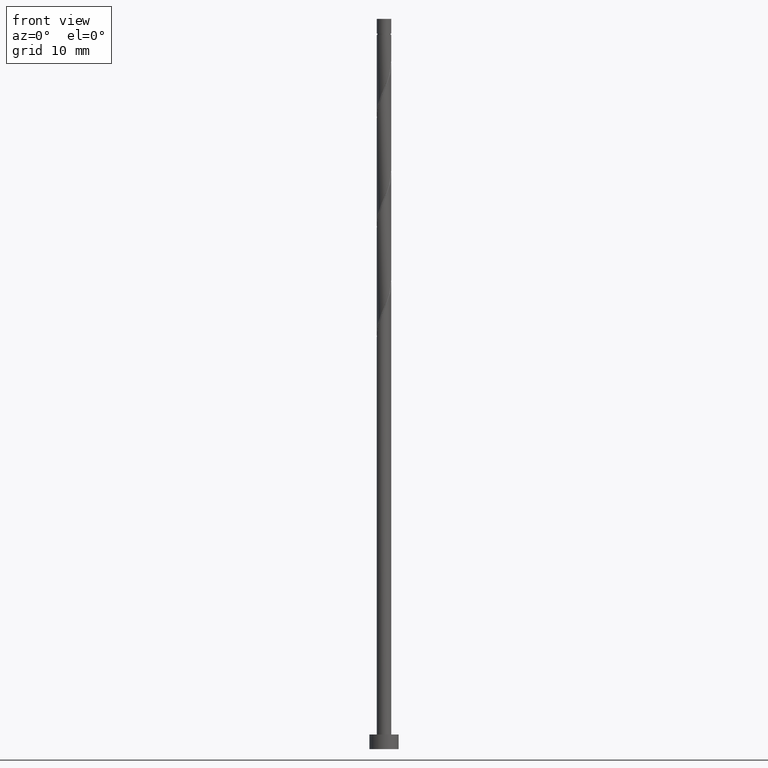
[diagram: clean part render]
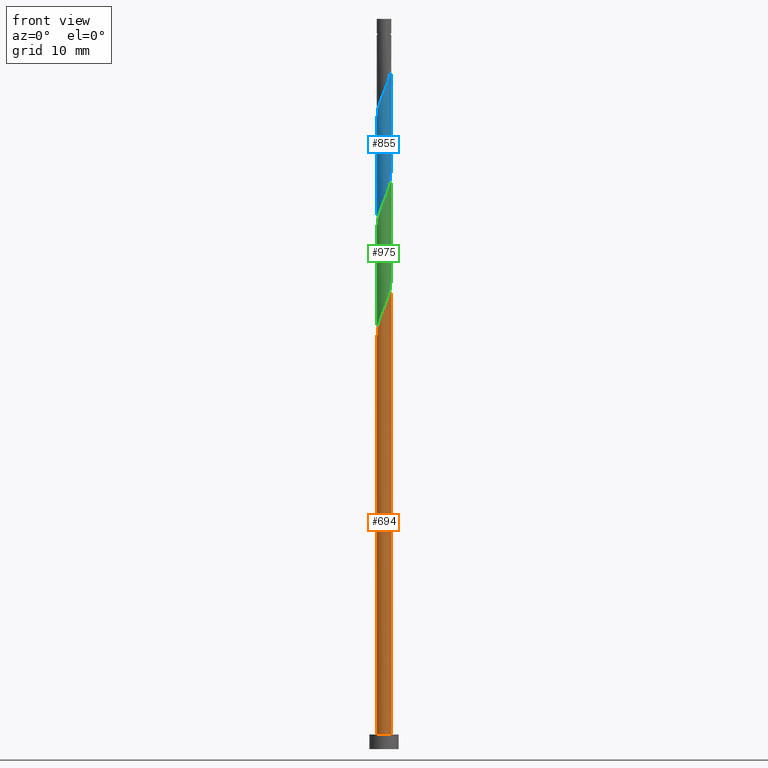
[diagram: same view with three faces highlighted in distinct colors, each labeled with its STEP entity id]
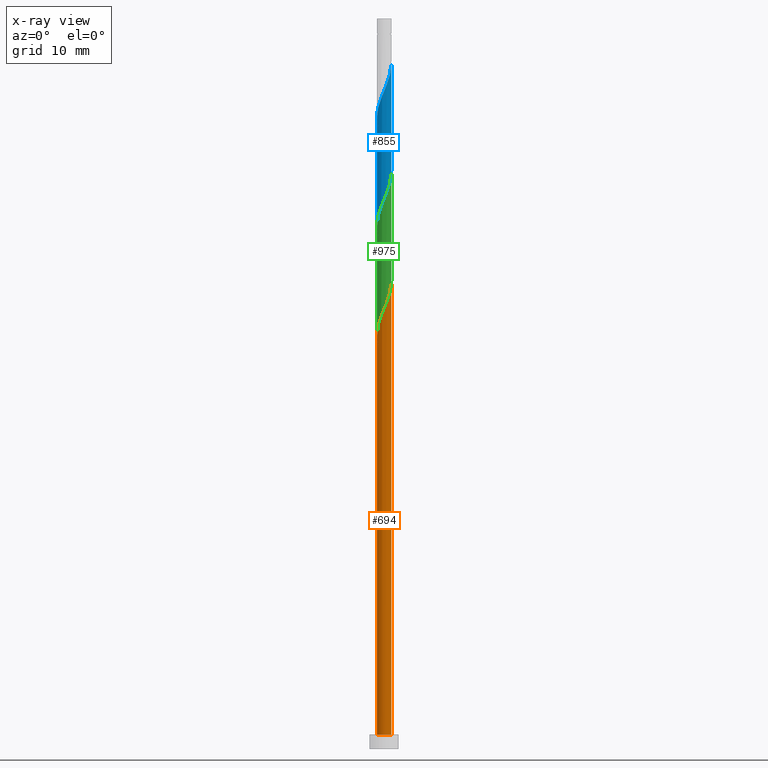
[diagram: x-ray of the same camera — body ghosted, the three highlighted faces saturated]
A machine part, front view with three faces highlighted in distinct colors.
The next image is the same camera in x-ray (body ghosted, the three faces saturated) — at least one of them is partly hidden behind the body in this view.
Their STEP definitions:

[orange] entity #694 — the highlighted cylindrical surface (edge-blend (fillet) strip) has radius 1 mm, axis along (-0, -0, -1).
#9 = CARTESIAN_POINT ( 'NONE',  ( -1.000000000000000000, 0.000000000000000000, 2.000000000000000000 ) ) ;
#14 = CARTESIAN_POINT ( 'NONE',  ( 1.000000000000000444, -0.03726283816066764537, 63.72138669025336100 ) ) ;
#23 = CARTESIAN_POINT ( 'NONE',  ( -0.9999999999999997780, -8.453207281310098825E-15, 56.31035135352637155 ) ) ;
#41 = CARTESIAN_POINT ( 'NONE',  ( 0.000000000000000000, 0.000000000000000000, 2.000000000000000000 ) ) ;
#77 =( BOUNDED_CURVE ( )  B_SPLINE_CURVE ( 2, ( #1274, #144, #1162, #1397, #380, #766, #522, #197, #1106, #660, #556, #1237, #402, #860, #745, #246, #121, #133, #1059, #14, #838 ),
 .UNSPECIFIED., .F., .T. ) 
 B_SPLINE_CURVE_WITH_KNOTS ( ( 3, 2, 2, 2, 2, 2, 2, 2, 2, 2, 3 ),
 ( 0.05852626155789682205, 0.06944444444444441977, 0.08333333333333337034, 0.09722222222222220989, 0.1111111111111111605, 0.1250000000000000000, 0.1388888888888888395, 0.1527777777777777901, 0.1666666666666666297, 0.1805555555555555802, 0.1835262615578969192 ),
 .UNSPECIFIED. ) 
 CURVE ( )  GEOMETRIC_REPRESENTATION_ITEM ( )  RATIONAL_B_SPLINE_CURVE ( ( 0.9475153373969229520, 0.9410068908218436334, 0.9523809523809509958, 0.9379121457259110839, 0.9523809523809509958, 0.9379121457259110839, 0.9523809523809509958, 0.9379121457259110839, 0.9523809523809509958, 0.9379121457259110839, 0.9523809523809509958, 0.9379121457259110839, 0.9523809523809509958, 0.9379121457259110839, 0.9523809523809509958, 0.9379121457259110839, 0.9523809523809509958, 0.9379121457259110839, 0.9523809523809509958, 0.9492862072850182242, 0.9475153373969227300 ) ) 
 REPRESENTATION_ITEM ( '' )  );
#104 = ORIENTED_EDGE ( 'NONE', *, *, #1175, .T. ) ;
#111 = ORIENTED_EDGE ( 'NONE', *, *, #781, .F. ) ;
#121 = CARTESIAN_POINT ( 'NONE',  ( 0.9116327376541116800, -0.4110057805399693898, 62.79999999999999716 ) ) ;
#132 = FACE_OUTER_BOUND ( 'NONE', #1227, .T. ) ;
#133 = CARTESIAN_POINT ( 'NONE',  ( 0.9841041459904503741, -0.2502603323944278535, 63.21666666666666856 ) ) ;
#144 = CARTESIAN_POINT ( 'NONE',  ( -0.9999999999999988898, -0.1381563937346808602, 56.64019839831190950 ) ) ;
#168 = DIRECTION ( 'NONE',  ( 0.000000000000000000, 0.000000000000000000, 1.000000000000000000 ) ) ;
#197 = CARTESIAN_POINT ( 'NONE',  ( -0.4173462071991567157, -0.9256961420802413132, 59.05000000000000426 ) ) ;
#246 = CARTESIAN_POINT ( 'NONE',  ( 0.8391613293177730970, -0.5717512286855108705, 62.38333333333333997 ) ) ;
#255 = DIRECTION ( 'NONE',  ( -0.000000000000000000, -0.000000000000000000, -1.000000000000000000 ) ) ;
#275 = VERTEX_POINT ( 'NONE', #683 ) ;
#327 = CARTESIAN_POINT ( 'NONE',  ( 1.000000000000000000, 1.224646799147353207E-16, 2.000000000000000000 ) ) ;
#342 = VERTEX_POINT ( 'NONE', #327 ) ;
#378 = LINE ( 'NONE', #1168, #1212 ) ;
#380 = CARTESIAN_POINT ( 'NONE',  ( -0.8117578158769209740, -0.5839942194600308278, 57.80000000000000426 ) ) ;
#402 = CARTESIAN_POINT ( 'NONE',  ( 0.4341617696046363717, -0.9008349226211040950, 61.13333333333334707 ) ) ;
#447 = EDGE_CURVE ( 'NONE', #680, #1024, #482, .T. ) ;
#482 = LINE ( 'NONE', #948, #609 ) ;
#489 = DIRECTION ( 'NONE',  ( -1.000000000000000000, 0.000000000000000000, 0.000000000000000000 ) ) ;
#498 = EDGE_CURVE ( 'NONE', #680, #275, #77, .T. ) ;
#522 = CARTESIAN_POINT ( 'NONE',  ( -0.5630650428037469180, -0.8264125831401736288, 58.63333333333333286 ) ) ;
#556 = CARTESIAN_POINT ( 'NONE',  ( 0.09987492177719080322, -0.9949999999999999956, 60.30000000000000426 ) ) ;
#609 = VECTOR ( 'NONE', #1388, 1000.000000000000000 ) ;
#660 = CARTESIAN_POINT ( 'NONE',  ( -0.07557042402773206380, -1.012610643405466249, 59.88333333333335418 ) ) ;
#680 = VERTEX_POINT ( 'NONE', #23 ) ;
#683 = CARTESIAN_POINT ( 'NONE',  ( 1.000000000000000000, 7.866774965686214893E-17, 63.81035135352636445 ) ) ;
#694 = ADVANCED_FACE ( 'NONE', ( #132 ), #1281, .T. ) ;
#745 = CARTESIAN_POINT ( 'NONE',  ( 0.7160823004724661267, -0.6980158586665925480, 61.96666666666666856 ) ) ;
#766 = CARTESIAN_POINT ( 'NONE',  ( -0.7087838784083370092, -0.7271290242001063886, 58.21666666666666856 ) ) ;
#781 = EDGE_CURVE ( 'NONE', #275, #342, #378, .T. ) ;
#798 = AXIS2_PLACEMENT_3D ( 'NONE', #1177, #1289, #489 ) ;
#838 = CARTESIAN_POINT ( 'NONE',  ( 1.000000000000000000, 7.866774965686214893E-17, 63.81035135352636445 ) ) ;
#860 = CARTESIAN_POINT ( 'NONE',  ( 0.5930032716271590454, -0.8242804886476744475, 61.55000000000001137 ) ) ;
#948 = CARTESIAN_POINT ( 'NONE',  ( -1.000000000000000000, 0.000000000000000000, 100.0000000000000000 ) ) ;
#1024 = VERTEX_POINT ( 'NONE', #9 ) ;
#1059 = CARTESIAN_POINT ( 'NONE',  ( 0.9972268124083832896, -0.07442233948093021634, 63.63333333333334707 ) ) ;
#1062 = CIRCLE ( 'NONE', #1235, 1.000000000000000000 ) ;
#1106 = CARTESIAN_POINT ( 'NONE',  ( -0.2464583156134444175, -0.9691533927428536144, 59.46666666666667567 ) ) ;
#1162 = CARTESIAN_POINT ( 'NONE',  ( -0.9625406160859104610, -0.2711375340762611774, 56.96666666666668277 ) ) ;
#1168 = CARTESIAN_POINT ( 'NONE',  ( 1.000000000000000000, 1.224646799147353207E-16, 100.0000000000000000 ) ) ;
#1175 = EDGE_CURVE ( 'NONE', #1024, #342, #1062, .T. ) ;
#1177 = CARTESIAN_POINT ( 'NONE',  ( 0.000000000000000000, 0.000000000000000000, 100.0000000000000000 ) ) ;
#1179 = ORIENTED_EDGE ( 'NONE', *, *, #447, .T. ) ;
#1212 = VECTOR ( 'NONE', #255, 1000.000000000000000 ) ;
#1227 = EDGE_LOOP ( 'NONE', ( #111, #1306, #1179, #104 ) ) ;
#1235 = AXIS2_PLACEMENT_3D ( 'NONE', #41, #168, #1391 ) ;
#1237 = CARTESIAN_POINT ( 'NONE',  ( 0.2753202675821132539, -0.9773893565945339645, 60.71666666666666856 ) ) ;
#1274 = CARTESIAN_POINT ( 'NONE',  ( -0.9999999999999997780, -8.453207281310098825E-15, 56.31035135352637155 ) ) ;
#1281 = CYLINDRICAL_SURFACE ( 'NONE', #798, 1.000000000000000000 ) ;
#1289 = DIRECTION ( 'NONE',  ( -0.000000000000000000, -0.000000000000000000, -1.000000000000000000 ) ) ;
#1306 = ORIENTED_EDGE ( 'NONE', *, *, #498, .F. ) ;
#1388 = DIRECTION ( 'NONE',  ( -0.000000000000000000, -0.000000000000000000, -1.000000000000000000 ) ) ;
#1391 = DIRECTION ( 'NONE',  ( 1.000000000000000000, 0.000000000000000000, 0.000000000000000000 ) ) ;
#1397 = CARTESIAN_POINT ( 'NONE',  ( -0.9147317533455049388, -0.4408594147199554891, 57.38333333333333997 ) ) ;

[blue] entity #855 — the highlighted cylindrical surface (edge-blend (fillet) strip) has radius 1 mm, axis along (-0, -0, -1).
#18 = CARTESIAN_POINT ( 'NONE',  ( -1.000000000000000444, -0.03726283816067003929, 71.87861330974669727 ) ) ;
#26 = CARTESIAN_POINT ( 'NONE',  ( -0.4341617696046366492, -0.9008349226211040950, 74.46666666666665435 ) ) ;
#42 = EDGE_CURVE ( 'NONE', #323, #123, #903, .T. ) ;
#50 = CARTESIAN_POINT ( 'NONE',  ( -1.000000000000000444, -0.1381563937346758919, 86.64019839831189529 ) ) ;
#60 = CARTESIAN_POINT ( 'NONE',  ( -0.9147317533455049388, -0.4408594147199554891, 87.38333333333331154 ) ) ;
#61 = CARTESIAN_POINT ( 'NONE',  ( 1.000000000000000222, -0.03726283816066728455, 93.72138669025336810 ) ) ;
#67 = CARTESIAN_POINT ( 'NONE',  ( -0.9625406160859104610, -0.2711375340762611774, 86.96666666666666856 ) ) ;
#123 = VERTEX_POINT ( 'NONE', #1265 ) ;
#172 = FACE_OUTER_BOUND ( 'NONE', #863, .T. ) ;
#178 = CARTESIAN_POINT ( 'NONE',  ( -1.000000000000000000, -8.581936326203144864E-17, 86.31035135352635734 ) ) ;
#190 = CARTESIAN_POINT ( 'NONE',  ( 0.9116327376541116800, -0.4110057805399693898, 92.80000000000001137 ) ) ;
#230 = CARTESIAN_POINT ( 'NONE',  ( -1.000000000000000000, -8.581936326203144864E-17, 86.31035135352635734 ) ) ;
#299 = CARTESIAN_POINT ( 'NONE',  ( 0.09987492177719080322, -0.9949999999999999956, 90.29999999999999716 ) ) ;
#300 = CARTESIAN_POINT ( 'NONE',  ( 0.8391613293177730970, -0.5717512286855108705, 92.38333333333331154 ) ) ;
#323 = VERTEX_POINT ( 'NONE', #230 ) ;
#335 = CARTESIAN_POINT ( 'NONE',  ( 0.7160823004724661267, -0.6980158586665925480, 91.96666666666669698 ) ) ;
#413 = CARTESIAN_POINT ( 'NONE',  ( -0.7087838784083370092, -0.7271290242001063886, 88.21666666666666856 ) ) ;
#509 = CARTESIAN_POINT ( 'NONE',  ( 1.000000000000000222, -4.290968163101563064E-16, 79.28964864647366539 ) ) ;
#524 = CYLINDRICAL_SURFACE ( 'NONE', #701, 1.000000000000000000 ) ;
#525 = CARTESIAN_POINT ( 'NONE',  ( 0.9972268124083832896, -0.07442233948093021634, 93.63333333333335418 ) ) ;
#533 = CARTESIAN_POINT ( 'NONE',  ( 1.000000000000000000, 7.866774965686214893E-17, 93.81035135352635734 ) ) ;
#538 = CARTESIAN_POINT ( 'NONE',  ( 1.000000000000000000, 7.866774965686214893E-17, 93.81035135352635734 ) ) ;
#539 = CARTESIAN_POINT ( 'NONE',  ( -0.8117578158769209740, -0.5839942194600308278, 87.80000000000001137 ) ) ;
#580 = CARTESIAN_POINT ( 'NONE',  ( 0.4341617696046363717, -0.9008349226211040950, 91.13333333333332575 ) ) ;
#607 = CARTESIAN_POINT ( 'NONE',  ( -0.09987492177719106690, -0.9949999999999999956, 75.30000000000002558 ) ) ;
#630 = CARTESIAN_POINT ( 'NONE',  ( 0.5630650428037468069, -0.8264125831401737399, 76.96666666666666856 ) ) ;
#634 = CARTESIAN_POINT ( 'NONE',  ( 0.000000000000000000, 0.000000000000000000, 100.0000000000000000 ) ) ;
#640 = CARTESIAN_POINT ( 'NONE',  ( -0.4173462071991567157, -0.9256961420802413132, 89.04999999999999716 ) ) ;
#670 = VECTOR ( 'NONE', #1091, 1000.000000000000000 ) ;
#701 = AXIS2_PLACEMENT_3D ( 'NONE', #634, #758, #1095 ) ;
#716 = CARTESIAN_POINT ( 'NONE',  ( 1.000000000000000222, -4.290968163101563064E-16, 79.28964864647366539 ) ) ;
#719 = CARTESIAN_POINT ( 'NONE',  ( 1.000000000000000000, 1.224646799147353207E-16, 100.0000000000000000 ) ) ;
#727 = CARTESIAN_POINT ( 'NONE',  ( -0.9841041459904508182, -0.2502603323944273539, 72.38333333333333997 ) ) ;
#758 = DIRECTION ( 'NONE',  ( -0.000000000000000000, -0.000000000000000000, -1.000000000000000000 ) ) ;
#763 = ORIENTED_EDGE ( 'NONE', *, *, #1067, .F. ) ;
#783 = VERTEX_POINT ( 'NONE', #716 ) ;
#842 = CARTESIAN_POINT ( 'NONE',  ( -1.000000000000000000, -2.603187352281614199E-15, 71.78964864647365118 ) ) ;
#853 = CARTESIAN_POINT ( 'NONE',  ( -0.7160823004724664598, -0.6980158586665924370, 73.63333333333332575 ) ) ;
#855 = ADVANCED_FACE ( 'NONE', ( #172 ), #524, .T. ) ;
#858 = EDGE_CURVE ( 'NONE', #323, #1410, #1157, .T. ) ;
#859 = CARTESIAN_POINT ( 'NONE',  ( -0.2753202675821139200, -0.9773893565945336315, 74.88333333333332575 ) ) ;
#863 = EDGE_LOOP ( 'NONE', ( #1137, #1079, #1372, #763 ) ) ;
#871 = CARTESIAN_POINT ( 'NONE',  ( -0.07557042402773206380, -1.012610643405466249, 89.88333333333333997 ) ) ;
#903 = LINE ( 'NONE', #1242, #1399 ) ;
#951 = CARTESIAN_POINT ( 'NONE',  ( 0.07557042402773136991, -1.012610643405466471, 75.71666666666666856 ) ) ;
#960 = CARTESIAN_POINT ( 'NONE',  ( 0.2464583156134441955, -0.9691533927428537254, 76.13333333333332575 ) ) ;
#966 = CARTESIAN_POINT ( 'NONE',  ( -0.9116327376541120131, -0.4110057805399687791, 72.80000000000002558 ) ) ;
#974 = CARTESIAN_POINT ( 'NONE',  ( 0.4173462071991564382, -0.9256961420802414242, 76.54999999999999716 ) ) ;
#979 = CARTESIAN_POINT ( 'NONE',  ( 0.9147317533455048277, -0.4408594147199561553, 78.21666666666665435 ) ) ;
#989 = CARTESIAN_POINT ( 'NONE',  ( 0.9841041459904503741, -0.2502603323944278535, 93.21666666666666856 ) ) ;
#996 = CARTESIAN_POINT ( 'NONE',  ( 0.5930032716271590454, -0.8242804886476744475, 91.54999999999999716 ) ) ;
#1002 = CARTESIAN_POINT ( 'NONE',  ( -0.5630650428037469180, -0.8264125831401736288, 88.63333333333335418 ) ) ;
#1067 = EDGE_CURVE ( 'NONE', #783, #123, #1462, .T. ) ;
#1076 = EDGE_CURVE ( 'NONE', #1410, #783, #1180, .T. ) ;
#1079 = ORIENTED_EDGE ( 'NONE', *, *, #858, .F. ) ;
#1091 = DIRECTION ( 'NONE',  ( -0.000000000000000000, -0.000000000000000000, -1.000000000000000000 ) ) ;
#1095 = DIRECTION ( 'NONE',  ( -1.000000000000000000, 0.000000000000000000, 0.000000000000000000 ) ) ;
#1131 = DIRECTION ( 'NONE',  ( -0.000000000000000000, -0.000000000000000000, -1.000000000000000000 ) ) ;
#1137 = ORIENTED_EDGE ( 'NONE', *, *, #1076, .F. ) ;
#1157 =( BOUNDED_CURVE ( )  B_SPLINE_CURVE ( 2, ( #178, #50, #67, #60, #539, #413, #1002, #640, #1442, #871, #299, #1199, #580, #996, #335, #300, #190, #989, #525, #61, #533 ),
 .UNSPECIFIED., .F., .T. ) 
 B_SPLINE_CURVE_WITH_KNOTS ( ( 3, 2, 2, 2, 2, 2, 2, 2, 2, 2, 3 ),
 ( 0.5585262615578964196, 0.5694444444444444198, 0.5833333333333332593, 0.5972222222222222099, 0.6111111111111111605, 0.6250000000000000000, 0.6388888888888888395, 0.6527777777777777901, 0.6666666666666667407, 0.6805555555555555802, 0.6835262615578969747 ),
 .UNSPECIFIED. ) 
 CURVE ( )  GEOMETRIC_REPRESENTATION_ITEM ( )  RATIONAL_B_SPLINE_CURVE ( ( 0.9475153373969233961, 0.9410068908218433004, 0.9523809523809509958, 0.9379121457259110839, 0.9523809523809509958, 0.9379121457259110839, 0.9523809523809509958, 0.9379121457259110839, 0.9523809523809509958, 0.9379121457259110839, 0.9523809523809509958, 0.9379121457259110839, 0.9523809523809509958, 0.9379121457259110839, 0.9523809523809509958, 0.9379121457259110839, 0.9523809523809509958, 0.9379121457259110839, 0.9523809523809509958, 0.9492862072850182242, 0.9475153373969227300 ) ) 
 REPRESENTATION_ITEM ( '' )  );
#1172 = CARTESIAN_POINT ( 'NONE',  ( -0.9972268124083832896, -0.07442233948093023022, 71.96666666666668277 ) ) ;
#1180 = LINE ( 'NONE', #719, #670 ) ;
#1199 = CARTESIAN_POINT ( 'NONE',  ( 0.2753202675821132539, -0.9773893565945339645, 90.71666666666666856 ) ) ;
#1242 = CARTESIAN_POINT ( 'NONE',  ( -1.000000000000000000, 0.000000000000000000, 100.0000000000000000 ) ) ;
#1265 = CARTESIAN_POINT ( 'NONE',  ( -1.000000000000000000, -2.603187352281614199E-15, 71.78964864647365118 ) ) ;
#1275 = CARTESIAN_POINT ( 'NONE',  ( -0.8391613293177733190, -0.5717512286855107595, 73.21666666666664014 ) ) ;
#1284 = CARTESIAN_POINT ( 'NONE',  ( 1.000000000000000888, -0.1381563937346747262, 78.95980160168809903 ) ) ;
#1300 = CARTESIAN_POINT ( 'NONE',  ( -0.5930032716271594895, -0.8242804886476744475, 74.05000000000001137 ) ) ;
#1304 = CARTESIAN_POINT ( 'NONE',  ( 0.7087838784083367871, -0.7271290242001067217, 77.38333333333332575 ) ) ;
#1372 = ORIENTED_EDGE ( 'NONE', *, *, #42, .T. ) ;
#1399 = VECTOR ( 'NONE', #1131, 1000.000000000000000 ) ;
#1407 = CARTESIAN_POINT ( 'NONE',  ( 0.9625406160859105720, -0.2711375340762611219, 78.63333333333331154 ) ) ;
#1410 = VERTEX_POINT ( 'NONE', #538 ) ;
#1420 = CARTESIAN_POINT ( 'NONE',  ( 0.8117578158769208629, -0.5839942194600313830, 77.80000000000002558 ) ) ;
#1442 = CARTESIAN_POINT ( 'NONE',  ( -0.2464583156134444175, -0.9691533927428536144, 89.46666666666669698 ) ) ;
#1462 =( BOUNDED_CURVE ( )  B_SPLINE_CURVE ( 2, ( #509, #1284, #1407, #979, #1420, #1304, #630, #974, #960, #951, #607, #859, #26, #1300, #853, #1275, #966, #727, #1172, #18, #842 ),
 .UNSPECIFIED., .F., .T. ) 
 B_SPLINE_CURVE_WITH_KNOTS ( ( 3, 2, 2, 2, 2, 2, 2, 2, 2, 2, 3 ),
 ( 0.5585262615578963086, 0.5694444444444444198, 0.5833333333333333703, 0.5972222222222222099, 0.6111111111111111605, 0.6250000000000000000, 0.6388888888888888395, 0.6527777777777777901, 0.6666666666666666297, 0.6805555555555555802, 0.6835262615578967527 ),
 .UNSPECIFIED. ) 
 CURVE ( )  GEOMETRIC_REPRESENTATION_ITEM ( )  RATIONAL_B_SPLINE_CURVE ( ( 0.9475153373969255055, 0.9410068908218450767, 0.9523809523809528832, 0.9379121457259129713, 0.9523809523809528832, 0.9379121457259129713, 0.9523809523809528832, 0.9379121457259129713, 0.9523809523809528832, 0.9379121457259129713, 0.9523809523809528832, 0.9379121457259129713, 0.9523809523809528832, 0.9379121457259129713, 0.9523809523809528832, 0.9379121457259129713, 0.9523809523809528832, 0.9379121457259129713, 0.9523809523809528832, 0.9492862072850202226, 0.9475153373969248394 ) ) 
 REPRESENTATION_ITEM ( '' )  );

[green] entity #975 — the highlighted cylindrical surface (edge-blend (fillet) strip) has radius 1 mm, axis along (-0, -0, -1).
#33 = CARTESIAN_POINT ( 'NONE',  ( -0.9116327376541120131, -0.4110057805399687791, 57.80000000000000426 ) ) ;
#35 = CARTESIAN_POINT ( 'NONE',  ( 0.2753202675821132539, -0.9773893565945339645, 75.71666666666664014 ) ) ;
#39 =( BOUNDED_CURVE ( )  B_SPLINE_CURVE ( 2, ( #257, #386, #147, #1068, #492, #265, #847, #395, #273, #1190, #45, #35, #401, #161, #1400, #154, #735, #832, #620, #1163, #1077 ),
 .UNSPECIFIED., .F., .T. ) 
 B_SPLINE_CURVE_WITH_KNOTS ( ( 3, 2, 2, 2, 2, 2, 2, 2, 2, 2, 3 ),
 ( 0.3085262615578962531, 0.3194444444444444198, 0.3333333333333333703, 0.3472222222222222099, 0.3611111111111111605, 0.3750000000000000000, 0.3888888888888888395, 0.4027777777777777901, 0.4166666666666666297, 0.4305555555555555802, 0.4335262615578967527 ),
 .UNSPECIFIED. ) 
 CURVE ( )  GEOMETRIC_REPRESENTATION_ITEM ( )  RATIONAL_B_SPLINE_CURVE ( ( 0.9475153373969236181, 0.9410068908218430783, 0.9523809523809509958, 0.9379121457259110839, 0.9523809523809509958, 0.9379121457259110839, 0.9523809523809509958, 0.9379121457259110839, 0.9523809523809509958, 0.9379121457259110839, 0.9523809523809509958, 0.9379121457259110839, 0.9523809523809509958, 0.9379121457259110839, 0.9523809523809509958, 0.9379121457259110839, 0.9523809523809509958, 0.9379121457259110839, 0.9523809523809509958, 0.9492862072850184463, 0.9475153373969230630 ) ) 
 REPRESENTATION_ITEM ( '' )  );
#45 = CARTESIAN_POINT ( 'NONE',  ( 0.09987492177719080322, -0.9949999999999999956, 75.30000000000003979 ) ) ;
#52 = VERTEX_POINT ( 'NONE', #1158 ) ;
#124 = DIRECTION ( 'NONE',  ( -1.000000000000000000, 0.000000000000000000, 0.000000000000000000 ) ) ;
#147 = CARTESIAN_POINT ( 'NONE',  ( -0.9625406160859104610, -0.2711375340762611774, 71.96666666666669698 ) ) ;
#150 = CARTESIAN_POINT ( 'NONE',  ( -0.7160823004724664598, -0.6980158586665924370, 58.63333333333332575 ) ) ;
#154 = CARTESIAN_POINT ( 'NONE',  ( 0.8391613293177730970, -0.5717512286855108705, 77.38333333333333997 ) ) ;
#161 = CARTESIAN_POINT ( 'NONE',  ( 0.5930032716271590454, -0.8242804886476744475, 76.55000000000001137 ) ) ;
#187 = LINE ( 'NONE', #531, #625 ) ;
#257 = CARTESIAN_POINT ( 'NONE',  ( -1.000000000000000000, -8.581936326203146096E-17, 71.31035135352634313 ) ) ;
#261 = CARTESIAN_POINT ( 'NONE',  ( 0.9625406160859105720, -0.2711375340762611219, 63.63333333333333286 ) ) ;
#265 = CARTESIAN_POINT ( 'NONE',  ( -0.7087838784083370092, -0.7271290242001063886, 73.21666666666666856 ) ) ;
#270 = CARTESIAN_POINT ( 'NONE',  ( -0.2753202675821139200, -0.9773893565945336315, 59.88333333333334707 ) ) ;
#273 = CARTESIAN_POINT ( 'NONE',  ( -0.2464583156134444175, -0.9691533927428536144, 74.46666666666666856 ) ) ;
#317 = ORIENTED_EDGE ( 'NONE', *, *, #696, .F. ) ;
#358 = FACE_OUTER_BOUND ( 'NONE', #1254, .T. ) ;
#359 = ORIENTED_EDGE ( 'NONE', *, *, #817, .F. ) ;
#372 = CARTESIAN_POINT ( 'NONE',  ( 0.9999999999999995559, -0.1381563937346788618, 63.95980160168808482 ) ) ;
#386 = CARTESIAN_POINT ( 'NONE',  ( -1.000000000000000888, -0.1381563937346738657, 71.64019839831189529 ) ) ;
#395 = CARTESIAN_POINT ( 'NONE',  ( -0.4173462071991567157, -0.9256961420802413132, 74.05000000000002558 ) ) ;
#401 = CARTESIAN_POINT ( 'NONE',  ( 0.4341617696046363717, -0.9008349226211040950, 76.13333333333333997 ) ) ;
#469 = CYLINDRICAL_SURFACE ( 'NONE', #891, 1.000000000000000000 ) ;
#471 = VERTEX_POINT ( 'NONE', #612 ) ;
#492 = CARTESIAN_POINT ( 'NONE',  ( -0.8117578158769209740, -0.5839942194600308278, 72.80000000000002558 ) ) ;
#496 = CARTESIAN_POINT ( 'NONE',  ( 0.2464583156134441955, -0.9691533927428537254, 61.13333333333333997 ) ) ;
#504 = ORIENTED_EDGE ( 'NONE', *, *, #1130, .F. ) ;
#505 = CARTESIAN_POINT ( 'NONE',  ( -0.9972268124083832896, -0.07442233948093023022, 56.96666666666666856 ) ) ;
#531 = CARTESIAN_POINT ( 'NONE',  ( -1.000000000000000000, 0.000000000000000000, 100.0000000000000000 ) ) ;
#545 = CARTESIAN_POINT ( 'NONE',  ( 1.000000000000000000, 7.866774965686214893E-17, 78.81035135352634313 ) ) ;
#612 = CARTESIAN_POINT ( 'NONE',  ( -1.000000000000000222, 1.930935673395703404E-16, 56.78964864647364408 ) ) ;
#620 = CARTESIAN_POINT ( 'NONE',  ( 0.9972268124083832896, -0.07442233948093021634, 78.63333333333332575 ) ) ;
#625 = VECTOR ( 'NONE', #1118, 1000.000000000000000 ) ;
#696 = EDGE_CURVE ( 'NONE', #52, #471, #1014, .T. ) ;
#725 = CARTESIAN_POINT ( 'NONE',  ( 0.9147317533455048277, -0.4408594147199561553, 63.21666666666667567 ) ) ;
#733 = CARTESIAN_POINT ( 'NONE',  ( -0.4341617696046366492, -0.9008349226211040950, 59.46666666666667567 ) ) ;
#735 = CARTESIAN_POINT ( 'NONE',  ( 0.9116327376541116800, -0.4110057805399693898, 77.80000000000001137 ) ) ;
#740 = CARTESIAN_POINT ( 'NONE',  ( 0.7087838784083367871, -0.7271290242001067217, 62.38333333333332575 ) ) ;
#769 = LINE ( 'NONE', #1315, #1334 ) ;
#817 = EDGE_CURVE ( 'NONE', #835, #52, #769, .T. ) ;
#829 = CARTESIAN_POINT ( 'NONE',  ( 0.5630650428037468069, -0.8264125831401737399, 61.96666666666666856 ) ) ;
#832 = CARTESIAN_POINT ( 'NONE',  ( 0.9841041459904503741, -0.2502603323944278535, 78.21666666666668277 ) ) ;
#835 = VERTEX_POINT ( 'NONE', #545 ) ;
#837 = CARTESIAN_POINT ( 'NONE',  ( -1.000000000000000222, 1.930935673395703650E-16, 56.78964864647364408 ) ) ;
#845 = CARTESIAN_POINT ( 'NONE',  ( -0.09987492177719106690, -0.9949999999999999956, 60.30000000000000426 ) ) ;
#847 = CARTESIAN_POINT ( 'NONE',  ( -0.5630650428037469180, -0.8264125831401736288, 73.63333333333332575 ) ) ;
#851 = CARTESIAN_POINT ( 'NONE',  ( 0.07557042402773136991, -1.012610643405466471, 60.71666666666666146 ) ) ;
#864 = CARTESIAN_POINT ( 'NONE',  ( -1.000000000000000000, -8.581936326203144864E-17, 71.31035135352634313 ) ) ;
#891 = AXIS2_PLACEMENT_3D ( 'NONE', #931, #1151, #124 ) ;
#931 = CARTESIAN_POINT ( 'NONE',  ( 0.000000000000000000, 0.000000000000000000, 100.0000000000000000 ) ) ;
#970 = CARTESIAN_POINT ( 'NONE',  ( 0.4173462071991564382, -0.9256961420802414242, 61.54999999999999716 ) ) ;
#975 = ADVANCED_FACE ( 'NONE', ( #358 ), #469, .T. ) ;
#995 = DIRECTION ( 'NONE',  ( -0.000000000000000000, -0.000000000000000000, -1.000000000000000000 ) ) ;
#1014 =( BOUNDED_CURVE ( )  B_SPLINE_CURVE ( 2, ( #1405, #372, #261, #725, #1074, #740, #829, #970, #496, #851, #845, #270, #733, #1298, #150, #1271, #33, #1050, #505, #1411, #837 ),
 .UNSPECIFIED., .F., .T. ) 
 B_SPLINE_CURVE_WITH_KNOTS ( ( 3, 2, 2, 2, 2, 2, 2, 2, 2, 2, 3 ),
 ( 0.8085262615578966416, 0.8194444444444444198, 0.8333333333333333703, 0.8472222222222222099, 0.8611111111111111605, 0.8750000000000000000, 0.8888888888888888395, 0.9027777777777777901, 0.9166666666666666297, 0.9305555555555555802, 0.9335262615578967527 ),
 .UNSPECIFIED. ) 
 CURVE ( )  GEOMETRIC_REPRESENTATION_ITEM ( )  RATIONAL_B_SPLINE_CURVE ( ( 0.9475153373969250614, 0.9410068908218454098, 0.9523809523809528832, 0.9379121457259129713, 0.9523809523809528832, 0.9379121457259129713, 0.9523809523809528832, 0.9379121457259129713, 0.9523809523809528832, 0.9379121457259129713, 0.9523809523809528832, 0.9379121457259129713, 0.9523809523809528832, 0.9379121457259129713, 0.9523809523809528832, 0.9379121457259129713, 0.9523809523809528832, 0.9379121457259129713, 0.9523809523809528832, 0.9492862072850202226, 0.9475153373969248394 ) ) 
 REPRESENTATION_ITEM ( '' )  );
#1050 = CARTESIAN_POINT ( 'NONE',  ( -0.9841041459904508182, -0.2502603323944273539, 57.38333333333332575 ) ) ;
#1068 = CARTESIAN_POINT ( 'NONE',  ( -0.9147317533455049388, -0.4408594147199554891, 72.38333333333331154 ) ) ;
#1074 = CARTESIAN_POINT ( 'NONE',  ( 0.8117578158769208629, -0.5839942194600313830, 62.79999999999999716 ) ) ;
#1077 = CARTESIAN_POINT ( 'NONE',  ( 1.000000000000000000, 7.866774965686214893E-17, 78.81035135352634313 ) ) ;
#1116 = ORIENTED_EDGE ( 'NONE', *, *, #1401, .T. ) ;
#1118 = DIRECTION ( 'NONE',  ( -0.000000000000000000, -0.000000000000000000, -1.000000000000000000 ) ) ;
#1130 = EDGE_CURVE ( 'NONE', #1210, #835, #39, .T. ) ;
#1151 = DIRECTION ( 'NONE',  ( -0.000000000000000000, -0.000000000000000000, -1.000000000000000000 ) ) ;
#1158 = CARTESIAN_POINT ( 'NONE',  ( 1.000000000000000222, -4.290968163101563064E-16, 64.28964864647365118 ) ) ;
#1163 = CARTESIAN_POINT ( 'NONE',  ( 0.9999999999999997780, -0.03726283816067007398, 78.72138669025329705 ) ) ;
#1190 = CARTESIAN_POINT ( 'NONE',  ( -0.07557042402773206380, -1.012610643405466249, 74.88333333333333997 ) ) ;
#1210 = VERTEX_POINT ( 'NONE', #864 ) ;
#1254 = EDGE_LOOP ( 'NONE', ( #359, #504, #1116, #317 ) ) ;
#1271 = CARTESIAN_POINT ( 'NONE',  ( -0.8391613293177733190, -0.5717512286855107595, 58.21666666666667567 ) ) ;
#1298 = CARTESIAN_POINT ( 'NONE',  ( -0.5930032716271594895, -0.8242804886476744475, 59.04999999999999005 ) ) ;
#1315 = CARTESIAN_POINT ( 'NONE',  ( 1.000000000000000000, 1.224646799147353207E-16, 100.0000000000000000 ) ) ;
#1334 = VECTOR ( 'NONE', #995, 1000.000000000000000 ) ;
#1400 = CARTESIAN_POINT ( 'NONE',  ( 0.7160823004724661267, -0.6980158586665925480, 76.96666666666669698 ) ) ;
#1401 = EDGE_CURVE ( 'NONE', #1210, #471, #187, .T. ) ;
#1405 = CARTESIAN_POINT ( 'NONE',  ( 1.000000000000000222, -4.290968163101563064E-16, 64.28964864647365118 ) ) ;
#1411 = CARTESIAN_POINT ( 'NONE',  ( -1.000000000000000444, -0.03726283816067003929, 56.87861330974668306 ) ) ;